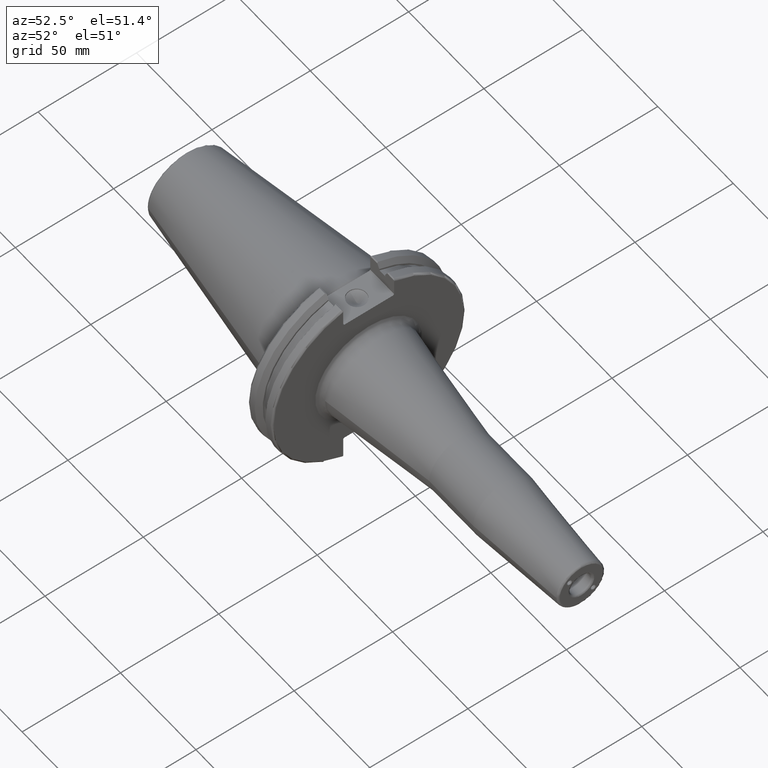
[diagram: clean part render]
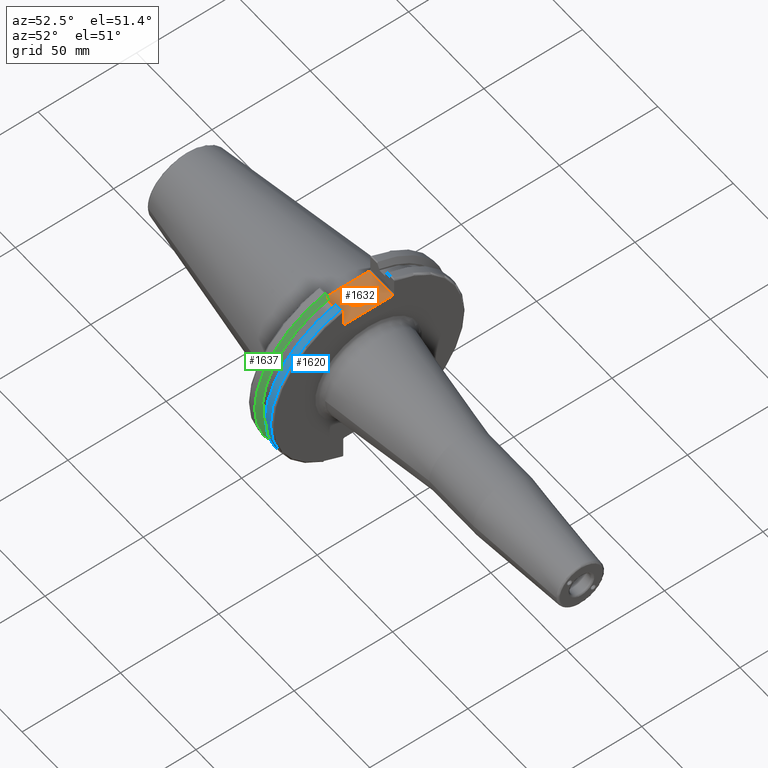
[diagram: same view with three faces highlighted in distinct colors, each labeled with its STEP entity id]
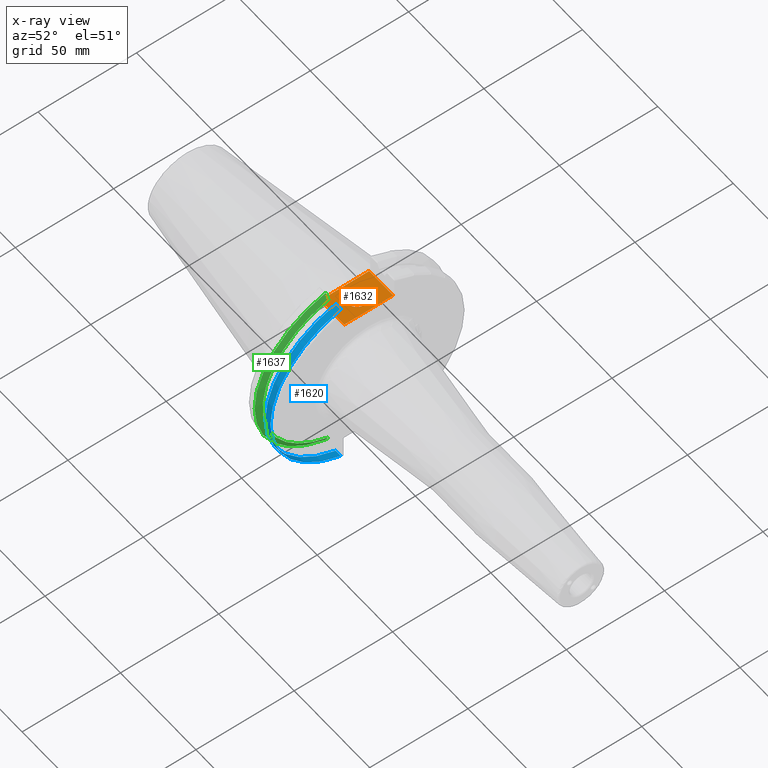
[diagram: x-ray of the same camera — body ghosted, the three highlighted faces saturated]
A machine part, auxiliary view with three faces highlighted in distinct colors.
The next image is the same camera in x-ray (body ghosted, the three faces saturated) — at least one of them is partly hidden behind the body in this view.
Their STEP definitions:

[orange] entity #1632 — the highlighted planar face has unit normal (0, 0, 1).
#89=FACE_BOUND('',#369,.T.);
#124=PLANE('',#1828);
#255=FACE_OUTER_BOUND('',#368,.T.);
#368=EDGE_LOOP('',(#1492,#1493,#1494,#1495));
#369=EDGE_LOOP('',(#1496));
#388=LINE('',#2364,#487);
#433=LINE('',#2965,#532);
#461=LINE('',#3194,#560);
#463=LINE('',#3197,#562);
#487=VECTOR('',#1917,10.);
#532=VECTOR('',#2118,10.);
#560=VECTOR('',#2212,10.);
#562=VECTOR('',#2216,10.);
#649=CIRCLE('',#1820,4.7625);
#679=VERTEX_POINT('',#2361);
#680=VERTEX_POINT('',#2363);
#767=VERTEX_POINT('',#2962);
#768=VERTEX_POINT('',#2964);
#814=VERTEX_POINT('',#3233);
#846=EDGE_CURVE('',#679,#680,#388,.T.);
#962=EDGE_CURVE('',#767,#768,#433,.T.);
#1025=EDGE_CURVE('',#680,#767,#461,.T.);
#1027=EDGE_CURVE('',#768,#679,#463,.T.);
#1042=EDGE_CURVE('',#814,#814,#649,.T.);
#1492=ORIENTED_EDGE('',*,*,#1025,.F.);
#1493=ORIENTED_EDGE('',*,*,#846,.F.);
#1494=ORIENTED_EDGE('',*,*,#1027,.F.);
#1495=ORIENTED_EDGE('',*,*,#962,.F.);
#1496=ORIENTED_EDGE('',*,*,#1042,.T.);
#1632=ADVANCED_FACE('',(#255,#89),#124,.T.);
#1820=AXIS2_PLACEMENT_3D('',#3234,#2251,#2252);
#1828=AXIS2_PLACEMENT_3D('',#3243,#2268,#2269);
#1917=DIRECTION('',(0.,-1.,0.));
#2118=DIRECTION('',(0.,1.,0.));
#2212=DIRECTION('',(-1.,1.31581988103722E-16,0.));
#2216=DIRECTION('',(1.,0.,0.));
#2251=DIRECTION('center_axis',(0.,0.,-1.));
#2252=DIRECTION('ref_axis',(1.,0.,0.));
#2268=DIRECTION('center_axis',(0.,0.,1.));
#2269=DIRECTION('ref_axis',(1.,0.,0.));
#2361=CARTESIAN_POINT('',(19.05,12.45,37.719));
#2363=CARTESIAN_POINT('',(19.05,-12.45,37.719));
#2364=CARTESIAN_POINT('',(19.05,0.,37.719));
#2962=CARTESIAN_POINT('',(3.175,-12.45,37.719));
#2964=CARTESIAN_POINT('',(3.175,12.45,37.719));
#2965=CARTESIAN_POINT('',(3.175,24.60625,37.719));
#3194=CARTESIAN_POINT('',(10.63125,-12.45,37.719));
#3197=CARTESIAN_POINT('',(19.06875,12.45,37.719));
#3233=CARTESIAN_POINT('',(6.3716,-5.83238038093927E-16,37.719));
#3234=CARTESIAN_POINT('Origin',(11.1341,0.,37.719));
#3243=CARTESIAN_POINT('Origin',(18.0875,0.,37.719));

[blue] entity #1620 — the highlighted cylindrical surface (partial cylindrical patch) has radius 49.2125 mm, axis along (1, 0, 0).
#164=CYLINDRICAL_SURFACE('',#1810,49.2125);
#243=FACE_OUTER_BOUND('',#356,.T.);
#356=EDGE_LOOP('',(#1440,#1441,#1442,#1443));
#469=LINE('',#3212,#568);
#470=LINE('',#3214,#569);
#568=VECTOR('',#2226,10.);
#569=VECTOR('',#2229,10.);
#609=CIRCLE('',#1727,49.2125);
#637=CIRCLE('',#1782,49.2125);
#719=VERTEX_POINT('',#2642);
#720=VERTEX_POINT('',#2646);
#786=VERTEX_POINT('',#3055);
#787=VERTEX_POINT('',#3064);
#897=EDGE_CURVE('',#720,#719,#609,.T.);
#988=EDGE_CURVE('',#786,#787,#637,.T.);
#1034=EDGE_CURVE('',#787,#719,#469,.T.);
#1035=EDGE_CURVE('',#720,#786,#470,.T.);
#1440=ORIENTED_EDGE('',*,*,#988,.F.);
#1441=ORIENTED_EDGE('',*,*,#1035,.F.);
#1442=ORIENTED_EDGE('',*,*,#897,.T.);
#1443=ORIENTED_EDGE('',*,*,#1034,.F.);
#1620=ADVANCED_FACE('',(#243),#164,.T.);
#1727=AXIS2_PLACEMENT_3D('',#2647,#2002,#2003);
#1782=AXIS2_PLACEMENT_3D('',#3065,#2147,#2148);
#1810=AXIS2_PLACEMENT_3D('',#3213,#2227,#2228);
#2002=DIRECTION('center_axis',(1.,0.,0.));
#2003=DIRECTION('ref_axis',(0.,0.,-1.));
#2147=DIRECTION('center_axis',(1.,0.,0.));
#2148=DIRECTION('ref_axis',(0.,-1.,1.60812264967664E-16));
#2226=DIRECTION('',(-1.,0.,0.));
#2227=DIRECTION('center_axis',(1.,0.,0.));
#2228=DIRECTION('ref_axis',(0.,-1.,1.22464679914735E-16));
#2229=DIRECTION('',(1.,0.,0.));
#2642=CARTESIAN_POINT('',(14.6602090340487,-13.4317035994433,-47.3440544806494));
#2646=CARTESIAN_POINT('',(14.6602090340487,-13.4317035994433,47.3440544806494));
#2647=CARTESIAN_POINT('Origin',(14.6602090340487,0.,0.));
#3055=CARTESIAN_POINT('',(18.05,-13.4317035994433,47.3440544806494));
#3064=CARTESIAN_POINT('',(18.05,-13.4317035994433,-47.3440544806494));
#3065=CARTESIAN_POINT('Origin',(18.05,0.,0.));
#3212=CARTESIAN_POINT('',(16.8551045170244,-13.4317035994433,-47.3440544806494));
#3213=CARTESIAN_POINT('Origin',(16.8551045170244,0.,0.));
#3214=CARTESIAN_POINT('',(16.8551045170244,-13.4317035994433,47.3440544806494));

[green] entity #1637 — the highlighted conical surface has half-angle 60 deg.
#25=(
BOUNDED_CURVE()
B_SPLINE_CURVE(2,(#3086,#3087,#3088),.UNSPECIFIED.,.F.,.F.)
B_SPLINE_CURVE_WITH_KNOTS((3,3),(0.,0.275823910674601),.UNSPECIFIED.)
CURVE()
GEOMETRIC_REPRESENTATION_ITEM()
RATIONAL_B_SPLINE_CURVE((1.,1.00038235573593,1.00012873636487))
REPRESENTATION_ITEM('')
);
#26=(
BOUNDED_CURVE()
B_SPLINE_CURVE(2,(#3098,#3099,#3100),.UNSPECIFIED.,.F.,.F.)
B_SPLINE_CURVE_WITH_KNOTS((3,3),(0.0558332664507492,0.331657177124507),
 .UNSPECIFIED.)
CURVE()
GEOMETRIC_REPRESENTATION_ITEM()
RATIONAL_B_SPLINE_CURVE((1.00012873636807,1.00038235574544,1.))
REPRESENTATION_ITEM('')
);
#27=(
BOUNDED_CURVE()
B_SPLINE_CURVE(2,(#3133,#3134,#3135),.UNSPECIFIED.,.F.,.F.)
B_SPLINE_CURVE_WITH_KNOTS((3,3),(0.,0.0648240472897372),.UNSPECIFIED.)
CURVE()
GEOMETRIC_REPRESENTATION_ITEM()
RATIONAL_B_SPLINE_CURVE((1.,1.00011477674836,1.00019140645948))
REPRESENTATION_ITEM('')
);
#28=(
BOUNDED_CURVE()
B_SPLINE_CURVE(2,(#3141,#3142,#3143),.UNSPECIFIED.,.F.,.F.)
B_SPLINE_CURVE_WITH_KNOTS((3,3),(0.325260944932348,0.390084992222201),
 .UNSPECIFIED.)
CURVE()
GEOMETRIC_REPRESENTATION_ITEM()
RATIONAL_B_SPLINE_CURVE((1.00019140645916,1.00011477674817,1.))
REPRESENTATION_ITEM('')
);
#39=B_SPLINE_CURVE_WITH_KNOTS('',3,(#2577,#2578,#2579,#2580,#2581,#2582,
#2583,#2584,#2585,#2586,#2587,#2588,#2589,#2590),.UNSPECIFIED.,.F.,.F.,
(4,2,2,2,2,2,4),(0.426712868358719,0.441644498666906,0.48031331322313,0.518982127779354,
0.557650942335578,0.596319756891801,0.611251387199988),.UNSPECIFIED.);
#260=FACE_OUTER_BOUND('',#375,.T.);
#375=EDGE_LOOP('',(#1511,#1512,#1513,#1514,#1515,#1516,#1517,#1518));
#613=CIRCLE('',#1734,46.4219772964944);
#639=CIRCLE('',#1789,49.2125);
#655=CIRCLE('',#1836,46.4219772964944);
#707=VERTEX_POINT('',#2574);
#708=VERTEX_POINT('',#2576);
#725=VERTEX_POINT('',#2666);
#789=VERTEX_POINT('',#3083);
#790=VERTEX_POINT('',#3085);
#793=VERTEX_POINT('',#3097);
#797=VERTEX_POINT('',#3131);
#798=VERTEX_POINT('',#3137);
#882=EDGE_CURVE('',#708,#707,#39,.T.);
#905=EDGE_CURVE('',#708,#725,#613,.T.);
#993=EDGE_CURVE('',#790,#789,#25,.T.);
#999=EDGE_CURVE('',#793,#725,#26,.T.);
#1007=EDGE_CURVE('',#797,#789,#27,.T.);
#1009=EDGE_CURVE('',#797,#798,#639,.T.);
#1010=EDGE_CURVE('',#793,#798,#28,.T.);
#1052=EDGE_CURVE('',#790,#707,#655,.T.);
#1511=ORIENTED_EDGE('',*,*,#882,.T.);
#1512=ORIENTED_EDGE('',*,*,#1052,.F.);
#1513=ORIENTED_EDGE('',*,*,#993,.T.);
#1514=ORIENTED_EDGE('',*,*,#1007,.F.);
#1515=ORIENTED_EDGE('',*,*,#1009,.T.);
#1516=ORIENTED_EDGE('',*,*,#1010,.F.);
#1517=ORIENTED_EDGE('',*,*,#999,.T.);
#1518=ORIENTED_EDGE('',*,*,#905,.F.);
#1547=CONICAL_SURFACE('',#1835,47.8172386482472,1.0471975511966);
#1637=ADVANCED_FACE('',(#260),#1547,.T.);
#1734=AXIS2_PLACEMENT_3D('',#2667,#2018,#2019);
#1789=AXIS2_PLACEMENT_3D('',#3139,#2172,#2173);
#1835=AXIS2_PLACEMENT_3D('',#3255,#2285,#2286);
#1836=AXIS2_PLACEMENT_3D('',#3256,#2287,#2288);
#2018=DIRECTION('center_axis',(1.,0.,0.));
#2019=DIRECTION('ref_axis',(0.,0.,-1.));
#2172=DIRECTION('center_axis',(1.,0.,0.));
#2173=DIRECTION('ref_axis',(0.,0.,-1.));
#2285=DIRECTION('center_axis',(-1.,0.,0.));
#2286=DIRECTION('ref_axis',(0.,-1.,-1.22464679914735E-16));
#2287=DIRECTION('center_axis',(1.,0.,0.));
#2288=DIRECTION('ref_axis',(0.,0.,-1.));
#2574=CARTESIAN_POINT('',(9.2191,-43.9096390749305,-15.0646464421033));
#2576=CARTESIAN_POINT('',(9.2191,-43.3201030900029,-16.684383248648));
#2577=CARTESIAN_POINT('Ctrl Pts',(9.21910000000001,-43.3201030900029,-16.6843832486479));
#2578=CARTESIAN_POINT('Ctrl Pts',(9.20211843903392,-43.3613106941341,-16.6592273018006));
#2579=CARTESIAN_POINT('Ctrl Pts',(9.18608675403322,-43.4012416983557,-16.6326763251437));
#2580=CARTESIAN_POINT('Ctrl Pts',(9.13238673845037,-43.5391037343221,-16.5325130832406));
#2581=CARTESIAN_POINT('Ctrl Pts',(9.09621610663556,-43.6406982153491,-16.441180795372));
#2582=CARTESIAN_POINT('Ctrl Pts',(9.04690868251975,-43.8110833825827,-16.2291323464527));
#2583=CARTESIAN_POINT('Ctrl Pts',(9.0341,-43.8794096049168,-16.10796730316));
#2584=CARTESIAN_POINT('Ctrl Pts',(9.0341,-43.9675796948952,-15.8657219718732));
#2585=CARTESIAN_POINT('Ctrl Pts',(9.04690868251975,-43.9931221605126,-15.7289849146254));
#2586=CARTESIAN_POINT('Ctrl Pts',(9.09621610663556,-43.9989016655819,-15.4570249042867));
#2587=CARTESIAN_POINT('Ctrl Pts',(9.13238673845037,-43.9797830409458,-15.3217566390708));
#2588=CARTESIAN_POINT('Ctrl Pts',(9.18608675403322,-43.9385582852181,-15.1564111356409));
#2589=CARTESIAN_POINT('Ctrl Pts',(9.20211843903392,-43.9250360001461,-15.1104047527575));
#2590=CARTESIAN_POINT('Ctrl Pts',(9.2191,-43.9096390749305,-15.0646464421033));
#2666=CARTESIAN_POINT('',(9.2191,-12.95,-44.5791147973604));
#2667=CARTESIAN_POINT('Origin',(9.2191,0.,0.));
#3083=CARTESIAN_POINT('',(7.88638960562424,-12.95,46.9780755322918));
#3085=CARTESIAN_POINT('',(9.2191,-12.95,44.5791147973604));
#3086=CARTESIAN_POINT('Ctrl Pts',(9.2191,-12.95,44.5791147973604));
#3087=CARTESIAN_POINT('Ctrl Pts',(8.57020449055857,-12.95,45.7494966802148));
#3088=CARTESIAN_POINT('Ctrl Pts',(7.88638960562424,-12.95,46.9780755322918));
#3097=CARTESIAN_POINT('',(7.88638960562425,-12.95,-46.9780755322918));
#3098=CARTESIAN_POINT('Ctrl Pts',(7.88638960562425,-12.95,-46.9780755322918));
#3099=CARTESIAN_POINT('Ctrl Pts',(8.57020449054166,-12.95,-45.7494966802452));
#3100=CARTESIAN_POINT('Ctrl Pts',(9.2191,-12.95,-44.5791147973604));
#3131=CARTESIAN_POINT('',(7.60799096595127,-13.4317035994433,47.3440544806494));
#3133=CARTESIAN_POINT('Ctrl Pts',(7.60799096595126,-13.4317035994433,47.3440544806494));
#3134=CARTESIAN_POINT('Ctrl Pts',(7.7482689666382,-13.1896660169966,47.1601640966265));
#3135=CARTESIAN_POINT('Ctrl Pts',(7.88638960562424,-12.95,46.9780755322918));
#3137=CARTESIAN_POINT('',(7.60799096595127,-13.4317035994433,-47.3440544806494));
#3139=CARTESIAN_POINT('Origin',(7.60799096595127,0.,0.));
#3141=CARTESIAN_POINT('Ctrl Pts',(7.88638960562425,-12.95,-46.9780755322918));
#3142=CARTESIAN_POINT('Ctrl Pts',(7.74826896663813,-13.1896660169967,-47.1601640966265));
#3143=CARTESIAN_POINT('Ctrl Pts',(7.60799096595127,-13.4317035994434,-47.3440544806494));
#3255=CARTESIAN_POINT('Origin',(8.41354548297563,0.,0.));
#3256=CARTESIAN_POINT('Origin',(9.2191,0.,0.));